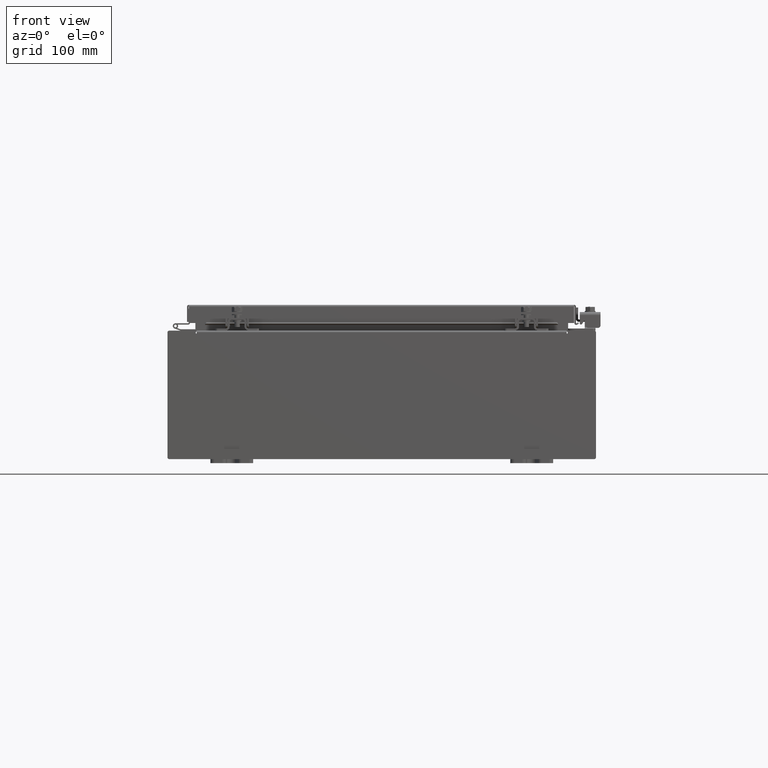
[diagram: clean part render]
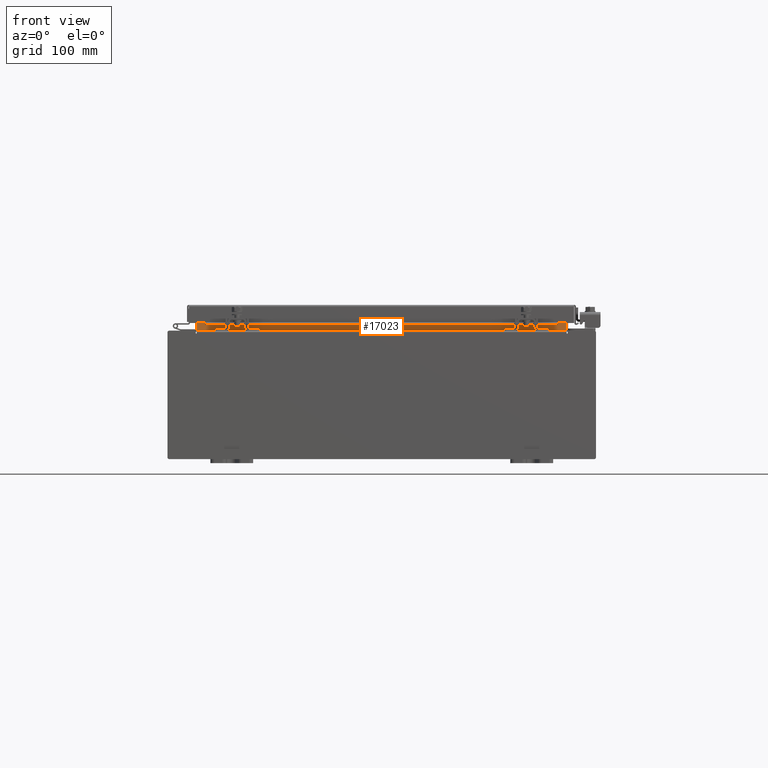
[diagram: same view with one face highlighted and labeled with its STEP entity id]
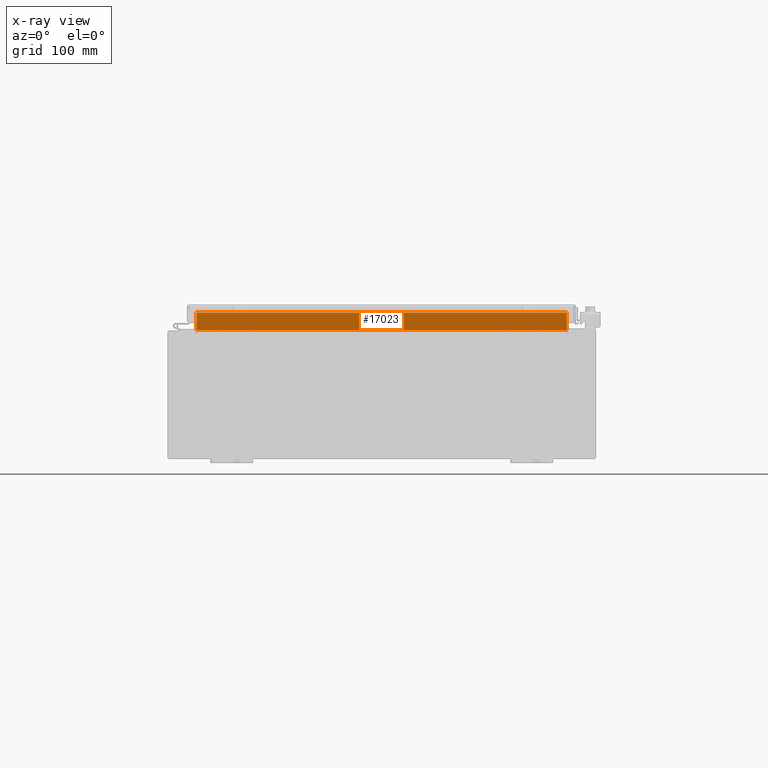
[diagram: x-ray of the same camera — body ghosted, the highlighted face saturated]
A machine part, front view. The second image highlights one B-rep face of the part: STEP entity #17023.
The next image is the same camera in x-ray: the body ghosted, the highlighted face saturated — about 0% of this face is hidden behind the body in this view.
In plain terms, the highlighted planar face has unit normal (0, -1, 0).
Its self-contained STEP definition (entity closure, byte-faithful):
#252 = DIRECTION ( 'NONE',  ( 0.0000000000000000000, 1.000000000000000000, 0.0000000000000000000 ) ) ;
#2874 = CARTESIAN_POINT ( 'NONE',  ( -8.637200000000000000, -1.300299999999999800, 3.013000000000004800 ) ) ;
#3447 = ORIENTED_EDGE ( 'NONE', *, *, #28515, .F. ) ;
#4419 = LINE ( 'NONE', #30585, #16897 ) ;
#6312 = EDGE_LOOP ( 'NONE', ( #3447, #23944, #23232, #13665 ) ) ;
#6845 = CARTESIAN_POINT ( 'NONE',  ( 8.637199999999996400, -1.300299999999999800, 3.013000000000004800 ) ) ;
#6959 = VERTEX_POINT ( 'NONE', #6845 ) ;
#7063 = VECTOR ( 'NONE', #25942, 39.37007874015748100 ) ;
#7156 = DIRECTION ( 'NONE',  ( -0.0000000000000000000, -0.0000000000000000000, 1.000000000000000000 ) ) ;
#11053 = CARTESIAN_POINT ( 'NONE',  ( -8.637200000000000000, -1.300299999999999800, 3.013000000000005200 ) ) ;
#13494 = EDGE_CURVE ( 'NONE', #6959, #26218, #25640, .T. ) ;
#13665 = ORIENTED_EDGE ( 'NONE', *, *, #17214, .F. ) ;
#13683 = LINE ( 'NONE', #11053, #7063 ) ;
#14645 = CARTESIAN_POINT ( 'NONE',  ( 8.637200000000000000, -1.300299999999999800, 3.925300000000005300 ) ) ;
#15279 = CARTESIAN_POINT ( 'NONE',  ( 0.0000000000000000000, -1.300299999999999800, 0.0000000000000000000 ) ) ;
#15578 = DIRECTION ( 'NONE',  ( -0.0000000000000000000, -0.0000000000000000000, -1.000000000000000000 ) ) ;
#16897 = VECTOR ( 'NONE', #15578, 39.37007874015748100 ) ;
#17023 = ADVANCED_FACE ( 'NONE', ( #19873 ), #25206, .T. ) ;
#17214 = EDGE_CURVE ( 'NONE', #19745, #6959, #13683, .T. ) ;
#17407 = VERTEX_POINT ( 'NONE', #21656 ) ;
#17655 = VECTOR ( 'NONE', #26031, 39.37007874015748100 ) ;
#17752 = DIRECTION ( 'NONE',  ( 0.0000000000000000000, -0.0000000000000000000, 1.000000000000000000 ) ) ;
#17990 = AXIS2_PLACEMENT_3D ( 'NONE', #15279, #252, #17752 ) ;
#19745 = VERTEX_POINT ( 'NONE', #2874 ) ;
#19873 = FACE_OUTER_BOUND ( 'NONE', #6312, .T. ) ;
#21154 = EDGE_CURVE ( 'NONE', #26218, #17407, #23519, .T. ) ;
#21656 = CARTESIAN_POINT ( 'NONE',  ( -8.637200000000000000, -1.300300000000000000, 3.837600000000005000 ) ) ;
#23232 = ORIENTED_EDGE ( 'NONE', *, *, #13494, .F. ) ;
#23499 = CARTESIAN_POINT ( 'NONE',  ( 8.637200000000000000, -1.300300000000000000, 3.837600000000005000 ) ) ;
#23519 = LINE ( 'NONE', #23499, #17655 ) ;
#23944 = ORIENTED_EDGE ( 'NONE', *, *, #21154, .F. ) ;
#25206 = PLANE ( 'NONE',  #17990 ) ;
#25303 = CARTESIAN_POINT ( 'NONE',  ( 8.637200000000000000, -1.300299999999999800, 3.837600000000005000 ) ) ;
#25640 = LINE ( 'NONE', #14645, #32308 ) ;
#25942 = DIRECTION ( 'NONE',  ( 1.000000000000000000, 0.0000000000000000000, -6.325772226333218300E-017 ) ) ;
#26031 = DIRECTION ( 'NONE',  ( -1.000000000000000000, -0.0000000000000000000, -0.0000000000000000000 ) ) ;
#26218 = VERTEX_POINT ( 'NONE', #25303 ) ;
#28515 = EDGE_CURVE ( 'NONE', #17407, #19745, #4419, .T. ) ;
#30585 = CARTESIAN_POINT ( 'NONE',  ( -8.637200000000000000, -1.300299999999999800, 3.000000000000005300 ) ) ;
#32308 = VECTOR ( 'NONE', #7156, 39.37007874015748100 ) ;